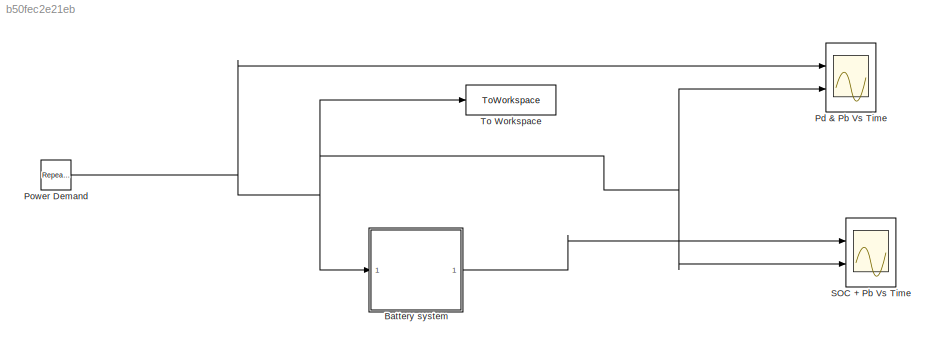
MODEL slx_b50fec2e21eb
KIND model
CONFIG AbsTol = auto
CONFIG EnableMultiTasking = off
CONFIG FixedStep = auto
CONFIG MaxStep = auto
CONFIG MinStep = auto
CONFIG RelTol = 1
CONFIG SampleTimeConstraint = Unconstrained
CONFIG SolverName = VariableStepAuto
CONFIG StartTime = 0.0
CONFIG StopTime = 260
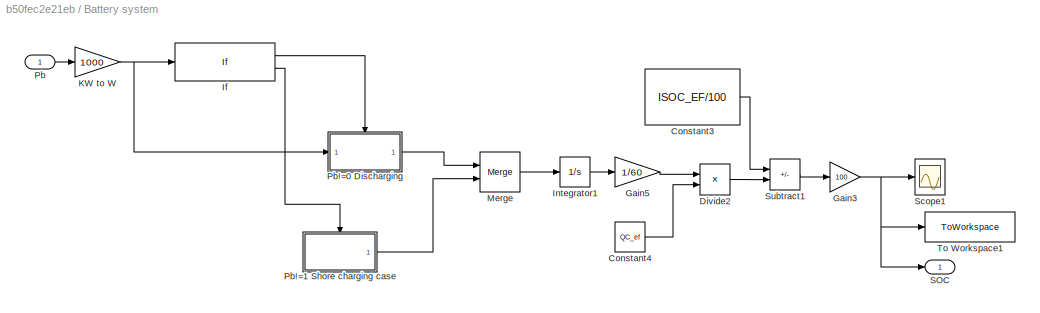
BLOCK [SubSystem] Battery system
  Ports = [1, 1]
  RequestExecContextInheritance = off
BLOCK [Constant] Battery system/Constant3
  Value = ISOC_EF/100
BLOCK [Constant] Battery system/Constant4
  Value = QC_ef
BLOCK [Product] Battery system/Divide2
  Inputs = */
  Ports = [2, 1]
BLOCK [Gain] Battery system/Gain3
  Gain = 100
BLOCK [Gain] Battery system/Gain5
  Gain = 1/60
BLOCK [If] Battery system/If
  Ports = [1, 2]
BLOCK [Integrator] Battery system/Integrator1
  Ports = [1, 1]
BLOCK [Gain] Battery system/KW to W
  Gain = 1000
BLOCK [Merge] Battery system/Merge
  Ports = [2, 1]
BLOCK [Inport] Battery system/Pb
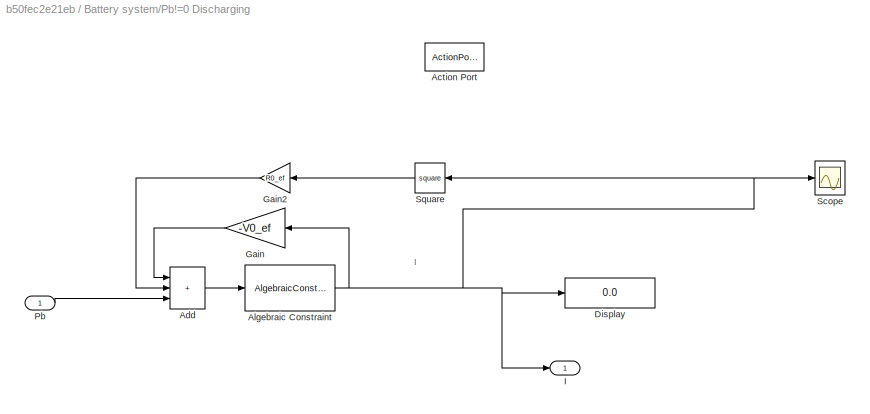
BLOCK [SubSystem] Battery system/Pb!=0 Discharging
  Ports = [1, 1, 0, 0, 0, 0, 0, 1]
  RequestExecContextInheritance = off
  TreatAsAtomicUnit = on
BLOCK [ActionPort] Battery system/Pb!=0 Discharging/Action Port
  ActionPortLabel = if(u1 > 0)
BLOCK [Sum] Battery system/Pb!=0 Discharging/Add
  IconShape = rectangular
  Inputs = +++
  Ports = [3, 1]
BLOCK [AlgebraicConstraint] Battery system/Pb!=0 Discharging/Algebraic Constraint
  InitialGuess = -999999999999
BLOCK [Display] Battery system/Pb!=0 Discharging/Display
  Decimation = 1
  Ports = [1]
BLOCK [Gain] Battery system/Pb!=0 Discharging/Gain
  Gain = -V0_ef
  NameLocation = top
BLOCK [Gain] Battery system/Pb!=0 Discharging/Gain2
  Gain = R0_ef
  NameLocation = top
BLOCK [Outport] Battery system/Pb!=0 Discharging/I
BLOCK [Inport] Battery system/Pb!=0 Discharging/Pb
BLOCK [Scope] Battery system/Pb!=0 Discharging/Scope
  Floating = off
  NumInputPorts = 1
  Ports = [1]
  ScopeSpecificationString = Simulink.scopes.TimeScopeBlockCfg('CurrentConfiguration', extmgr.ConfigurationSet(extmgr.Configuration('Core','General UI',true),extmgr.Configuration('Core','Source UI',true),extmgr.Configuration('Sources','WiredSimulink',true,'DataLoggingVariableName','ScopeData1'),extmgr.Configuration('Visuals','Time Domain',true,'SerializedDisplays',{struct('MinYLimReal','-992.74884','MaxYLimReal','838.40989','...<+1478ch>
BLOCK [Math] Battery system/Pb!=0 Discharging/Square
  NameLocation = top
  Operator = square
  Ports = [1, 1]
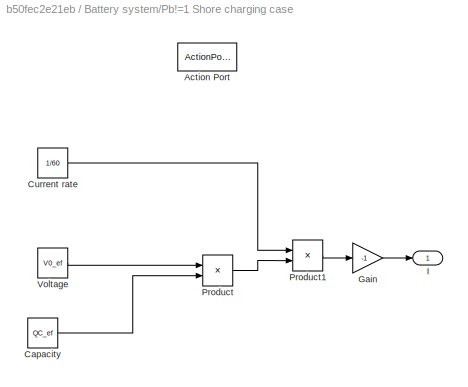
BLOCK [SubSystem] Battery system/Pb!=1 Shore charging case
  Ports = [0, 1, 0, 0, 0, 0, 0, 1]
  RequestExecContextInheritance = off
  TreatAsAtomicUnit = on
BLOCK [ActionPort] Battery system/Pb!=1 Shore charging case/Action Port
  ActionPortLabel = else
BLOCK [Constant] Battery system/Pb!=1 Shore charging case/Capacity
  Value = QC_ef
BLOCK [Constant] Battery system/Pb!=1 Shore charging case/Current rate
  Value = 1/60
BLOCK [Gain] Battery system/Pb!=1 Shore charging case/Gain
  Gain = -1
BLOCK [Outport] Battery system/Pb!=1 Shore charging case/I
BLOCK [Product] Battery system/Pb!=1 Shore charging case/Product
  Ports = [2, 1]
BLOCK [Product] Battery system/Pb!=1 Shore charging case/Product1
  Ports = [2, 1]
BLOCK [Constant] Battery system/Pb!=1 Shore charging case/Voltage
  Value = V0_ef
BLOCK [Outport] Battery system/SOC
BLOCK [Scope] Battery system/Scope1
  Floating = off
  NumInputPorts = 1
  Ports = [1]
  ScopeSpecificationString = Simulink.scopes.TimeScopeBlockCfg('CurrentConfiguration', extmgr.ConfigurationSet(extmgr.Configuration('Core','General UI',true),extmgr.Configuration('Core','Source UI',true),extmgr.Configuration('Sources','WiredSimulink',true,'DataLoggingVariableName','ScopeData2'),extmgr.Configuration('Visuals','Time Domain',true,'SerializedDisplays',{struct('MinYLimReal','-14055.20793','MaxYLimReal','1617.24533...<+1511ch>
BLOCK [Sum] Battery system/Subtract1
  IconShape = rectangular
  Inputs = +-
  Ports = [2, 1]
BLOCK [ToWorkspace] Battery system/To Workspace1
  FixptAsFi = on
  MaxDataPoints = inf
  Ports = [1]
  SampleTime = -1
  SaveFormat = Structure With Time
  VariableName = s
BLOCK [Scope] Pd & Pb Vs Time
  Floating = off
  NumInputPorts = 2
  Ports = [2]
  ScopeSpecificationString = Simulink.scopes.TimeScopeBlockCfg('CurrentConfiguration', extmgr.ConfigurationSet(extmgr.Configuration('Core','General UI',true,'FigureColor',[1 1 1]),extmgr.Configuration('Core','Source UI',true),extmgr.Configuration('Sources','WiredSimulink',true,'DataLoggingVariableName','ScopeData1'),extmgr.Configuration('Visuals','Time Domain',true,'SerializedDisplays',{struct('MinYLimReal','-55.04633','MaxYL...<+2587ch>
BLOCK [Reference] Power Demand  REF=simulink/Sources/Repeating
Sequence
Interpolated
  Ports = [0, 1]
  SourceBlock = simulink/Sources/Repeating\nSequence\nInterpolated
  SourceProductBaseCode = SL
  SourceType = Repeating Sequence Interpolated
BLOCK [Scope] SOC + Pb Vs Time
  Floating = off
  NumInputPorts = 2
  Ports = [2]
  ScopeSpecificationString = Simulink.scopes.TimeScopeBlockCfg('CurrentConfiguration', extmgr.ConfigurationSet(extmgr.Configuration('Core','General UI',true,'FigureColor',[1 1 1]),extmgr.Configuration('Core','Source UI',true),extmgr.Configuration('Sources','WiredSimulink',true),extmgr.Configuration('Visuals','Time Domain',true,'SerializedDisplays',{struct('MinYLimReal','9.75151','MaxYLimReal','105.60072','YLabelReal','','MinY...<+2623ch>
BLOCK [ToWorkspace] To Workspace
  FixptAsFi = on
  MaxDataPoints = inf
  Ports = [1]
  SampleTime = -1
  VariableName = P_b
ANNOTATION Battery system/Pb!=0 Discharging: I
LINE Battery system/Constant3:1 -> Battery system/Subtract1:1
LINE Battery system/Constant4:1 -> Battery system/Divide2:2
LINE Battery system/Divide2:1 -> Battery system/Subtract1:2
NET Battery system/Gain3:1 -> Battery system/SOC:1, Battery system/Scope1:1, Battery system/To Workspace1:1
LINE Battery system/Gain5:1 -> Battery system/Divide2:1
LINE Battery system/If:1 -> Battery system/Pb!=0 Discharging:ifaction
LINE Battery system/If:2 -> Battery system/Pb!=1 Shore charging case:ifaction
LINE Battery system/Integrator1:1 -> Battery system/Gain5:1
NET Battery system/KW to W:1 -> Battery system/If:1, Battery system/Pb!=0 Discharging:1
LINE Battery system/Merge:1 -> Battery system/Integrator1:1
LINE Battery system/Pb!=0 Discharging/Add:1 -> Battery system/Pb!=0 Discharging/Algebraic Constraint:1
NET Battery system/Pb!=0 Discharging/Algebraic Constraint:1 -> Battery system/Pb!=0 Discharging/Display:1, Battery system/Pb!=0 Discharging/Gain:1, Battery system/Pb!=0 Discharging/I:1, Battery system/Pb!=0 Discharging/Scope:1, Battery system/Pb!=0 Discharging/Square:1
LINE Battery system/Pb!=0 Discharging/Gain2:1 -> Battery system/Pb!=0 Discharging/Add:2
LINE Battery system/Pb!=0 Discharging/Gain:1 -> Battery system/Pb!=0 Discharging/Add:1
LINE Battery system/Pb!=0 Discharging/Pb:1 -> Battery system/Pb!=0 Discharging/Add:3
LINE Battery system/Pb!=0 Discharging/Square:1 -> Battery system/Pb!=0 Discharging/Gain2:1
LINE Battery system/Pb!=0 Discharging:1 -> Battery system/Merge:1
LINE Battery system/Pb!=1 Shore charging case/Capacity:1 -> Battery system/Pb!=1 Shore charging case/Product:2
LINE Battery system/Pb!=1 Shore charging case/Current rate:1 -> Battery system/Pb!=1 Shore charging case/Product1:1
LINE Battery system/Pb!=1 Shore charging case/Gain:1 -> Battery system/Pb!=1 Shore charging case/I:1
LINE Battery system/Pb!=1 Shore charging case/Product1:1 -> Battery system/Pb!=1 Shore charging case/Gain:1
LINE Battery system/Pb!=1 Shore charging case/Product:1 -> Battery system/Pb!=1 Shore charging case/Product1:2
LINE Battery system/Pb!=1 Shore charging case/Voltage:1 -> Battery system/Pb!=1 Shore charging case/Product:1
LINE Battery system/Pb!=1 Shore charging case:1 -> Battery system/Merge:2
LINE Battery system/Pb:1 -> Battery system/KW to W:1
LINE Battery system/Subtract1:1 -> Battery system/Gain3:1
LINE Battery system:1 -> SOC + Pb Vs Time:1
NET Power Demand:1 -> Battery system:1, Pd & Pb Vs Time:1, Pd & Pb Vs Time:2, SOC + Pb Vs Time:2, To Workspace:1
note: NET lines group one-source signal fan-out (src -> all destinations, sorted); 1:1 wires keep LINE
